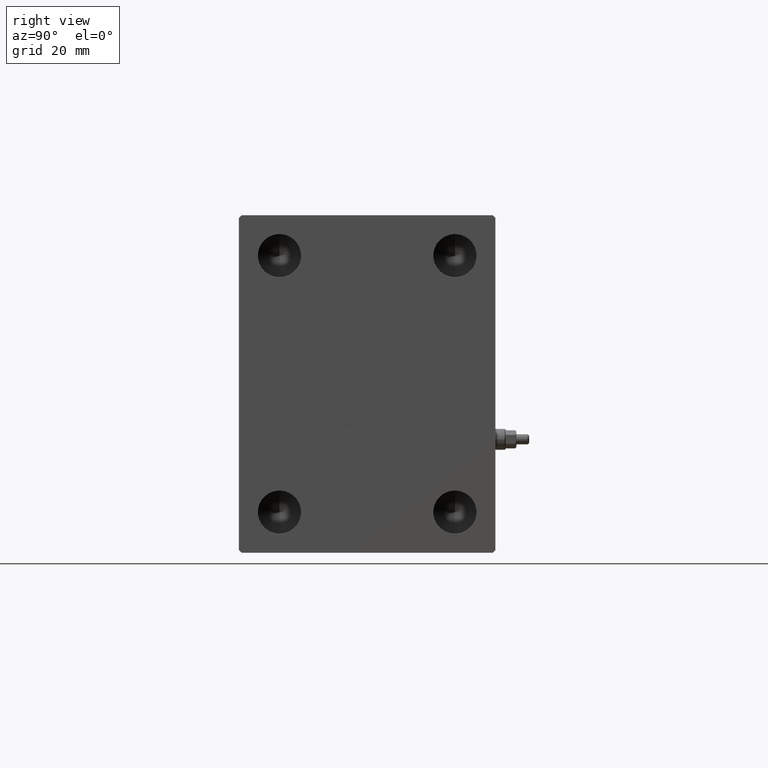
[diagram: clean part render]
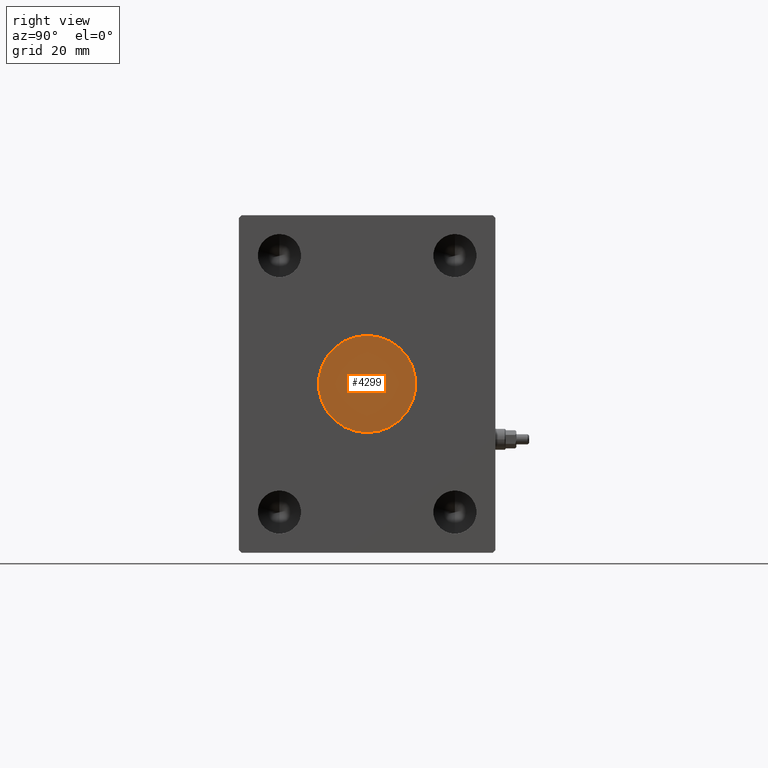
[diagram: same view with one face highlighted and labeled with its STEP entity id]
A machine part, right view. The second image highlights one B-rep face of the part: STEP entity #4299.
In plain terms, the highlighted planar face has unit normal (1, 0, 0).
Its self-contained STEP definition (entity closure, byte-faithful):
#1543 = EDGE_CURVE ( 'NONE', #23950, #24741, #31693, .T. ) ;
#2741 = DIRECTION ( 'NONE',  ( 1.000000000000000000, 0.000000000000000000, 0.000000000000000000 ) ) ;
#4299 = ADVANCED_FACE ( 'NONE', ( #22392 ), #25823, .T. ) ;
#5095 = EDGE_CURVE ( 'NONE', #24741, #23950, #22278, .T. ) ;
#6425 = CARTESIAN_POINT ( 'NONE',  ( 160.8000000000000114, 0.000000000000000000, 0.000000000000000000 ) ) ;
#6981 = ORIENTED_EDGE ( 'NONE', *, *, #5095, .T. ) ;
#7585 = CARTESIAN_POINT ( 'NONE',  ( 160.8000000000000114, 2.204364238465235428E-15, 18.00000000000000000 ) ) ;
#8275 = AXIS2_PLACEMENT_3D ( 'NONE', #42741, #18225, #32206 ) ;
#15293 = DIRECTION ( 'NONE',  ( 1.000000000000000000, 0.000000000000000000, 0.000000000000000000 ) ) ;
#15990 = DIRECTION ( 'NONE',  ( 0.000000000000000000, 0.000000000000000000, -1.000000000000000000 ) ) ;
#17231 = CARTESIAN_POINT ( 'NONE',  ( 160.8000000000000114, 0.000000000000000000, -18.00000000000000000 ) ) ;
#18225 = DIRECTION ( 'NONE',  ( 1.000000000000000000, 0.000000000000000000, 0.000000000000000000 ) ) ;
#22278 = CIRCLE ( 'NONE', #42738, 18.00000000000000000 ) ;
#22392 = FACE_OUTER_BOUND ( 'NONE', #39418, .T. ) ;
#23950 = VERTEX_POINT ( 'NONE', #17231 ) ;
#24741 = VERTEX_POINT ( 'NONE', #7585 ) ;
#25823 = PLANE ( 'NONE',  #26645 ) ;
#26292 = CARTESIAN_POINT ( 'NONE',  ( 160.8000000000000114, 0.000000000000000000, 0.000000000000000000 ) ) ;
#26501 = ORIENTED_EDGE ( 'NONE', *, *, #1543, .T. ) ;
#26645 = AXIS2_PLACEMENT_3D ( 'NONE', #26292, #15293, #15990 ) ;
#30714 = DIRECTION ( 'NONE',  ( 0.000000000000000000, 0.000000000000000000, -1.000000000000000000 ) ) ;
#31693 = CIRCLE ( 'NONE', #8275, 18.00000000000000000 ) ;
#32206 = DIRECTION ( 'NONE',  ( 0.000000000000000000, 0.000000000000000000, -1.000000000000000000 ) ) ;
#39418 = EDGE_LOOP ( 'NONE', ( #26501, #6981 ) ) ;
#42738 = AXIS2_PLACEMENT_3D ( 'NONE', #6425, #2741, #30714 ) ;
#42741 = CARTESIAN_POINT ( 'NONE',  ( 160.8000000000000114, 0.000000000000000000, 0.000000000000000000 ) ) ;